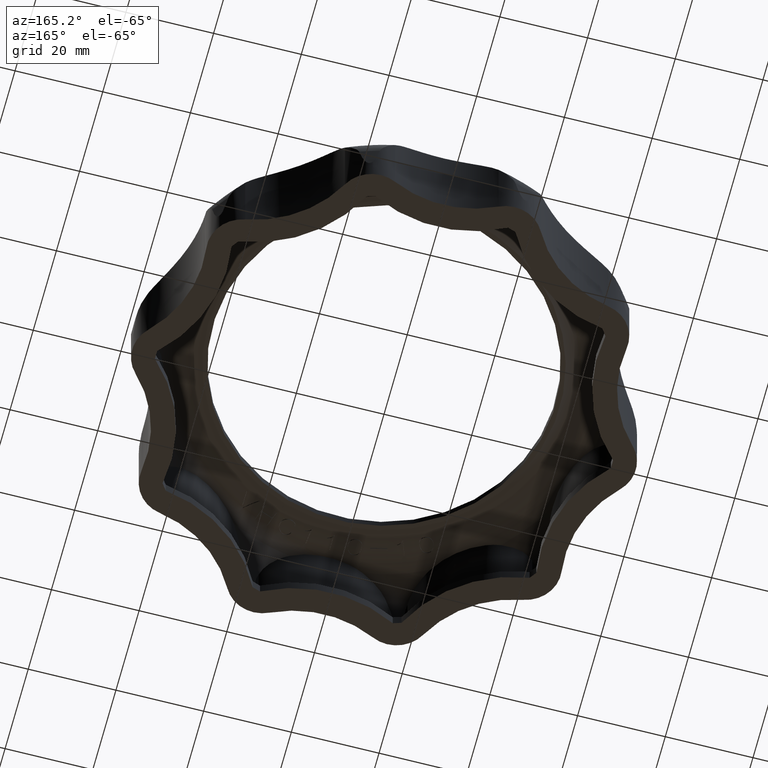
[diagram: clean part render]
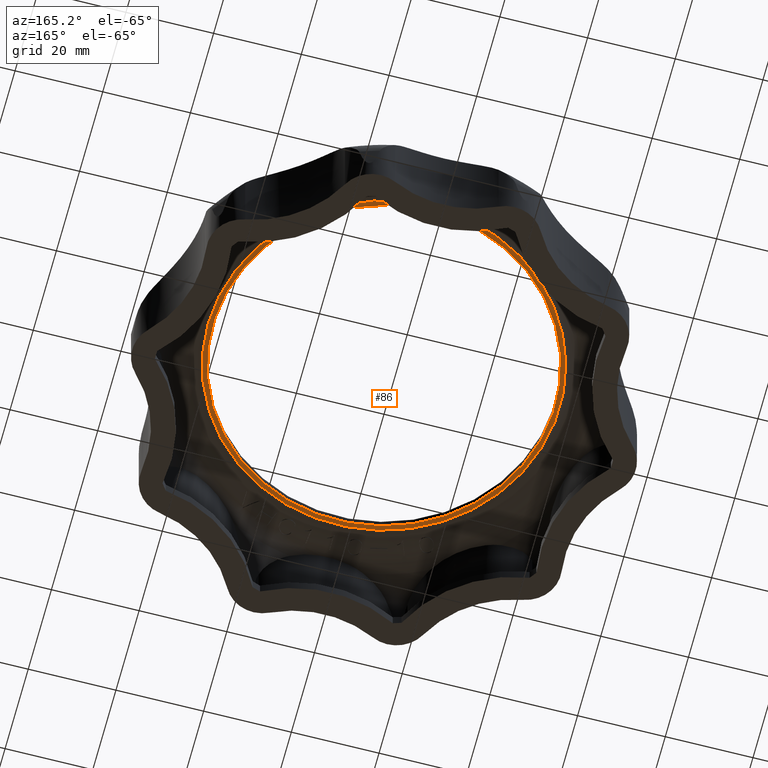
[diagram: same view with one face highlighted and labeled with its STEP entity id]
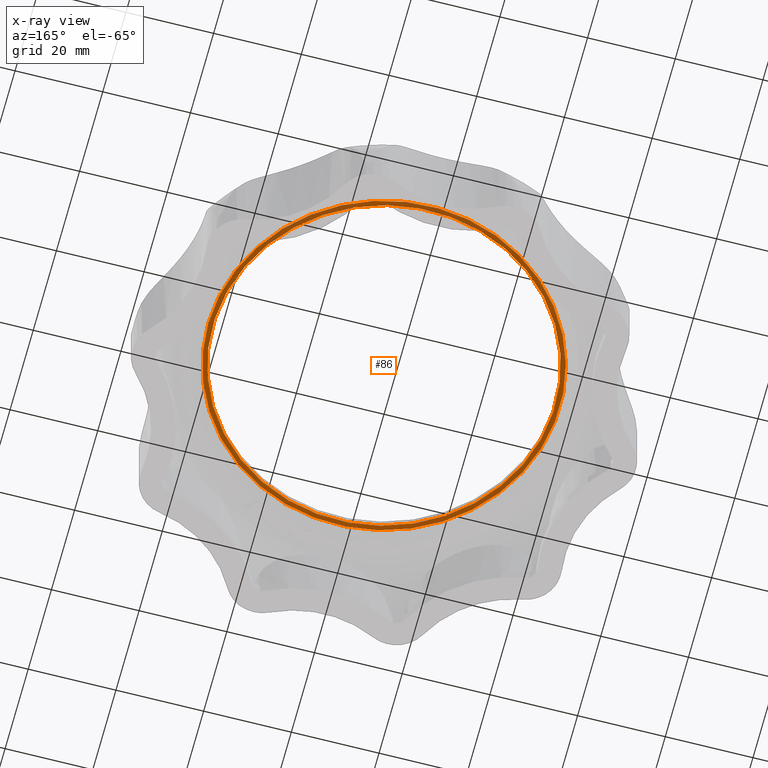
[diagram: x-ray of the same camera — body ghosted, the highlighted face saturated]
A machine part, auxiliary view. The second image highlights one B-rep face of the part: STEP entity #86.
The next image is the same camera in x-ray: the body ghosted, the highlighted face saturated — about 18% of this face is hidden behind the body in this view.
In plain terms, the highlighted planar face has unit normal (-0, 0, -1).
Its self-contained STEP definition (entity closure, byte-faithful):
#86 = ADVANCED_FACE( '', ( #2255, #2256 ), #2257, .T. );
#2255 = FACE_OUTER_BOUND( '', #6555, .T. );
#2256 = FACE_BOUND( '', #6556, .T. );
#2257 = PLANE( '', #6557 );
#6555 = EDGE_LOOP( '', ( #12804 ) );
#6556 = EDGE_LOOP( '', ( #12805 ) );
#6557 = AXIS2_PLACEMENT_3D( '', #12806, #12807, #12808 );
#12804 = ORIENTED_EDGE( '', *, *, #30825, .F. );
#12805 = ORIENTED_EDGE( '', *, *, #31759, .T. );
#12806 = CARTESIAN_POINT( '', ( -38.1243553495193, -12.3873539592412, -2.04560685381205 ) );
#12807 = DIRECTION( '', ( -1.89212087375327E-017, 5.82334926349610E-017, -1.00000000000000 ) );
#12808 = DIRECTION( '', ( -0.309016994374947, 0.951056516295154, 6.12303176911189E-017 ) );
#30825 = EDGE_CURVE( '', #38135, #38135, #38136, .T. );
#31759 = EDGE_CURVE( '', #40002, #40002, #40003, .F. );
#38135 = VERTEX_POINT( '', #51910 );
#38136 = CIRCLE( '', #51911, 40.0863194734556 );
#40002 = VERTEX_POINT( '', #56778 );
#40003 = CIRCLE( '', #56779, 39.0000000000000 );
#51910 = CARTESIAN_POINT( '', ( 12.3873539592412, -38.1243553495193, -2.04560685381205 ) );
#51911 = AXIS2_PLACEMENT_3D( '', #74169, #74170, #74171 );
#56778 = CARTESIAN_POINT( '', ( -12.0516627806229, 37.0912041355110, -2.04560685381204 ) );
#56779 = AXIS2_PLACEMENT_3D( '', #74322, #74323, #74324 );
#74169 = CARTESIAN_POINT( '', ( 0.000000000000000, 0.000000000000000, -2.04560685381205 ) );
#74170 = DIRECTION( '', ( 1.89212087375327E-017, -5.82334926349610E-017, 1.00000000000000 ) );
#74171 = DIRECTION( '', ( 0.309016994374947, -0.951056516295154, -6.12303176911189E-017 ) );
#74322 = CARTESIAN_POINT( '', ( 0.000000000000000, 0.000000000000000, -2.04560685381205 ) );
#74323 = DIRECTION( '', ( -1.89212087375327E-017, 5.82334926349611E-017, -1.00000000000000 ) );
#74324 = DIRECTION( '', ( -0.309016994374947, 0.951056516295154, 6.12303176911189E-017 ) );